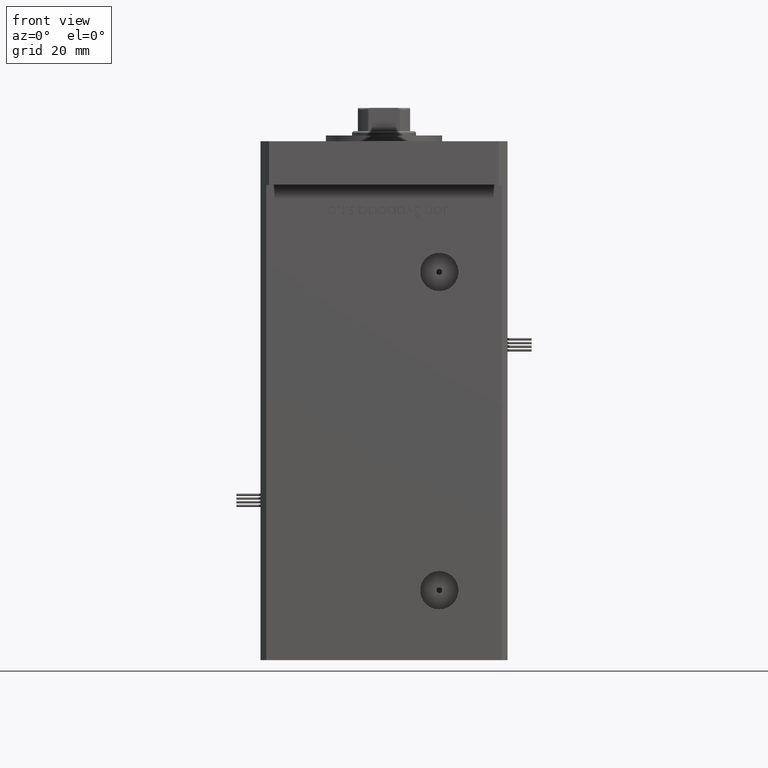
[diagram: clean part render]
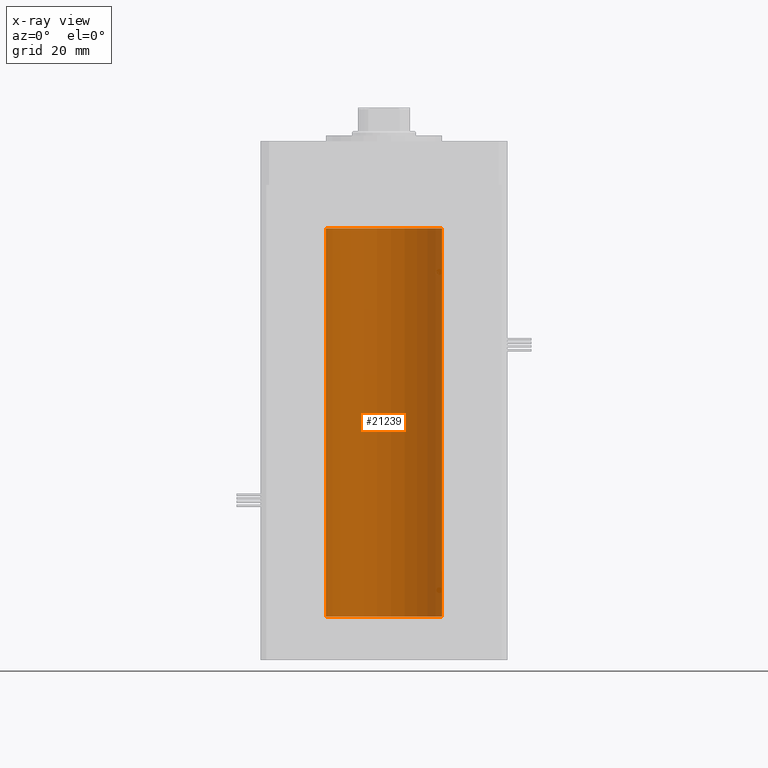
[diagram: x-ray — body ghosted, one internal face saturated and labeled with its STEP entity id]
A machine part, front view, then the same camera in x-ray: the body is ghosted and one INTERNAL B-rep face — a face not visible from any outside direction — is saturated and labeled: STEP entity #21239.
In plain terms, the highlighted cylindrical surface (partial cylindrical patch) has radius 20 mm, axis along (-0, -0, -1).
Its self-contained STEP definition (entity closure, byte-faithful):
#1008 = CARTESIAN_POINT ( 'NONE',  ( 20.00000000000000000, 2.449293598294706513E-15, 133.5000000000000000 ) ) ;
#1767 = VERTEX_POINT ( 'NONE', #2441 ) ;
#1926 = VERTEX_POINT ( 'NONE', #46815 ) ;
#2118 = DIRECTION ( 'NONE',  ( -0.000000000000000000, 0.000000000000000000, 1.000000000000000000 ) ) ;
#2441 = CARTESIAN_POINT ( 'NONE',  ( 20.00000000000000000, 2.449293598294706513E-15, 0.000000000000000000 ) ) ;
#2496 = EDGE_CURVE ( 'NONE', #35102, #1926, #44096, .T. ) ;
#2976 = DIRECTION ( 'NONE',  ( -1.000000000000000000, 0.000000000000000000, 0.000000000000000000 ) ) ;
#2993 = EDGE_CURVE ( 'NONE', #10696, #35102, #8532, .T. ) ;
#5841 = DIRECTION ( 'NONE',  ( 1.000000000000000000, 0.000000000000000000, 0.000000000000000000 ) ) ;
#6732 = CARTESIAN_POINT ( 'NONE',  ( -20.00000000000000000, 0.000000000000000000, 133.5000000000000000 ) ) ;
#8532 = CIRCLE ( 'NONE', #40532, 20.00000000000000000 ) ;
#10696 = VERTEX_POINT ( 'NONE', #34434 ) ;
#12514 = EDGE_CURVE ( 'NONE', #10696, #1767, #16041, .T. ) ;
#12850 = EDGE_LOOP ( 'NONE', ( #17607, #22597, #26151, #30246 ) ) ;
#14409 = DIRECTION ( 'NONE',  ( -0.000000000000000000, 0.000000000000000000, 1.000000000000000000 ) ) ;
#16041 = LINE ( 'NONE', #1008, #33177 ) ;
#16975 = DIRECTION ( 'NONE',  ( -0.000000000000000000, -0.000000000000000000, -1.000000000000000000 ) ) ;
#17607 = ORIENTED_EDGE ( 'NONE', *, *, #12514, .F. ) ;
#19700 = EDGE_CURVE ( 'NONE', #1767, #1926, #36173, .T. ) ;
#21239 = ADVANCED_FACE ( 'NONE', ( #42218 ), #33611, .F. ) ;
#22597 = ORIENTED_EDGE ( 'NONE', *, *, #2993, .T. ) ;
#26151 = ORIENTED_EDGE ( 'NONE', *, *, #2496, .T. ) ;
#30246 = ORIENTED_EDGE ( 'NONE', *, *, #19700, .F. ) ;
#30619 = CARTESIAN_POINT ( 'NONE',  ( -20.00000000000000000, 0.000000000000000000, 133.5000000000000000 ) ) ;
#33177 = VECTOR ( 'NONE', #40534, 1000.000000000000000 ) ;
#33611 = CYLINDRICAL_SURFACE ( 'NONE', #56376, 20.00000000000000000 ) ;
#34434 = CARTESIAN_POINT ( 'NONE',  ( 20.00000000000000000, 2.449293598294706513E-15, 133.5000000000000000 ) ) ;
#35102 = VERTEX_POINT ( 'NONE', #6732 ) ;
#36173 = CIRCLE ( 'NONE', #55387, 20.00000000000000000 ) ;
#38723 = VECTOR ( 'NONE', #52418, 1000.000000000000000 ) ;
#38762 = CARTESIAN_POINT ( 'NONE',  ( 0.000000000000000000, 0.000000000000000000, 133.5000000000000000 ) ) ;
#40532 = AXIS2_PLACEMENT_3D ( 'NONE', #53695, #14409, #5841 ) ;
#40534 = DIRECTION ( 'NONE',  ( -0.000000000000000000, -0.000000000000000000, -1.000000000000000000 ) ) ;
#42218 = FACE_OUTER_BOUND ( 'NONE', #12850, .T. ) ;
#44096 = LINE ( 'NONE', #30619, #38723 ) ;
#46482 = CARTESIAN_POINT ( 'NONE',  ( 0.000000000000000000, 0.000000000000000000, 0.000000000000000000 ) ) ;
#46815 = CARTESIAN_POINT ( 'NONE',  ( -20.00000000000000000, 0.000000000000000000, 0.000000000000000000 ) ) ;
#52418 = DIRECTION ( 'NONE',  ( -0.000000000000000000, -0.000000000000000000, -1.000000000000000000 ) ) ;
#53695 = CARTESIAN_POINT ( 'NONE',  ( 0.000000000000000000, 0.000000000000000000, 133.5000000000000000 ) ) ;
#54262 = DIRECTION ( 'NONE',  ( 1.000000000000000000, 0.000000000000000000, 0.000000000000000000 ) ) ;
#55387 = AXIS2_PLACEMENT_3D ( 'NONE', #46482, #2118, #54262 ) ;
#56376 = AXIS2_PLACEMENT_3D ( 'NONE', #38762, #16975, #2976 ) ;